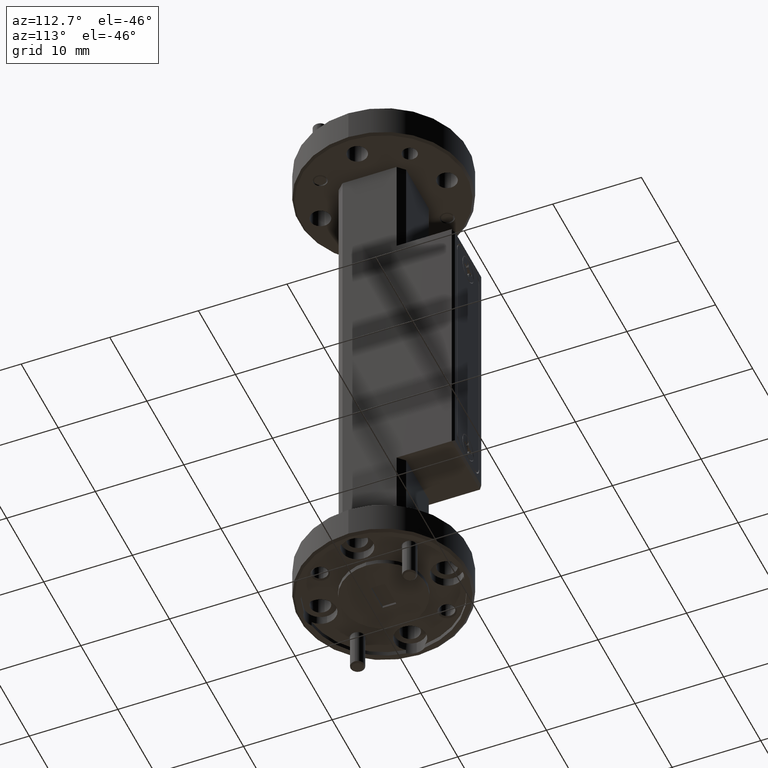
[diagram: clean part render]
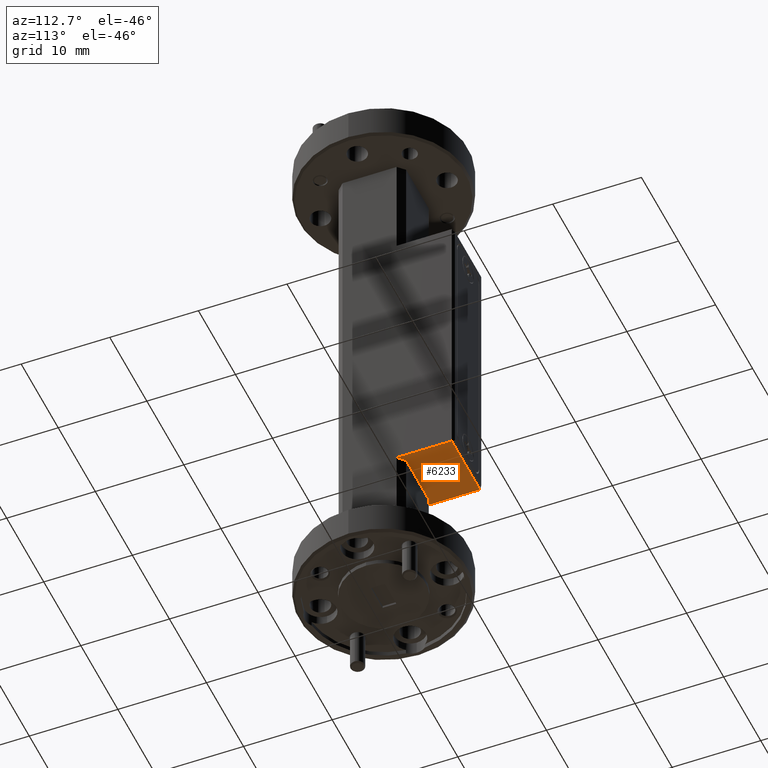
[diagram: same view with one face highlighted and labeled with its STEP entity id]
A machine part, auxiliary view. The second image highlights one B-rep face of the part: STEP entity #6233.
In plain terms, the highlighted planar face has unit normal (0, 0, -1).
Its self-contained STEP definition (entity closure, byte-faithful):
#66 = EDGE_LOOP ( 'NONE', ( #251, #613, #2700, #3508, #6987, #1954 ) ) ;
#117 = LINE ( 'NONE', #7258, #5092 ) ;
#136 = VECTOR ( 'NONE', #6617, 39.37007874015748143 ) ;
#175 = VECTOR ( 'NONE', #635, 39.37007874015748143 ) ;
#251 = ORIENTED_EDGE ( 'NONE', *, *, #623, .F. ) ;
#325 = EDGE_CURVE ( 'NONE', #1874, #7247, #1826, .T. ) ;
#579 = LINE ( 'NONE', #5216, #6936 ) ;
#613 = ORIENTED_EDGE ( 'NONE', *, *, #325, .T. ) ;
#623 = EDGE_CURVE ( 'NONE', #1874, #6634, #4637, .T. ) ;
#635 = DIRECTION ( 'NONE',  ( 7.588466649067396596E-17, 1.000000000000000000, -0.000000000000000000 ) ) ;
#1331 = LINE ( 'NONE', #4224, #175 ) ;
#1701 = CARTESIAN_POINT ( 'NONE',  ( -0.1500000000000001055, 0.3749999999999999445, -0.6250000000000000000 ) ) ;
#1826 = LINE ( 'NONE', #3097, #136 ) ;
#1874 = VERTEX_POINT ( 'NONE', #2557 ) ;
#1954 = ORIENTED_EDGE ( 'NONE', *, *, #6851, .T. ) ;
#2311 = CARTESIAN_POINT ( 'NONE',  ( -0.1500000000000000777, 0.1199999999999997041, -0.6250000000000000000 ) ) ;
#2316 = EDGE_CURVE ( 'NONE', #4044, #5179, #6408, .T. ) ;
#2325 = DIRECTION ( 'NONE',  ( -1.000000000000000000, 0.000000000000000000, 0.000000000000000000 ) ) ;
#2515 = DIRECTION ( 'NONE',  ( -0.7071067811865507924, -0.7071067811865443531, -0.000000000000000000 ) ) ;
#2557 = CARTESIAN_POINT ( 'NONE',  ( -0.1500000000000001055, 0.3649999999999997691, -0.6250000000000000000 ) ) ;
#2700 = ORIENTED_EDGE ( 'NONE', *, *, #5421, .F. ) ;
#3068 = CARTESIAN_POINT ( 'NONE',  ( 0.1500000000000000777, 0.1199999999999997041, -0.6250000000000000000 ) ) ;
#3097 = CARTESIAN_POINT ( 'NONE',  ( 0.1500000000000001055, 0.3649999999999997691, -0.6250000000000000000 ) ) ;
#3508 = ORIENTED_EDGE ( 'NONE', *, *, #6746, .T. ) ;
#3560 = DIRECTION ( 'NONE',  ( 0.000000000000000000, 0.000000000000000000, -1.000000000000000000 ) ) ;
#3669 = VECTOR ( 'NONE', #6409, 39.37007874015748143 ) ;
#3816 = CARTESIAN_POINT ( 'NONE',  ( 0.1199999999999993849, 0.1499999999999999389, -0.6250000000000000000 ) ) ;
#4044 = VERTEX_POINT ( 'NONE', #6599 ) ;
#4224 = CARTESIAN_POINT ( 'NONE',  ( 0.1500000000000001055, 0.3749999999999999445, -0.6250000000000000000 ) ) ;
#4272 = VERTEX_POINT ( 'NONE', #3068 ) ;
#4466 = AXIS2_PLACEMENT_3D ( 'NONE', #5617, #3560, #2325 ) ;
#4637 = LINE ( 'NONE', #1701, #3669 ) ;
#5092 = VECTOR ( 'NONE', #2515, 39.37007874015748143 ) ;
#5179 = VERTEX_POINT ( 'NONE', #3816 ) ;
#5182 = FACE_OUTER_BOUND ( 'NONE', #66, .T. ) ;
#5216 = CARTESIAN_POINT ( 'NONE',  ( 0.1199999999999993849, 0.1499999999999999389, -0.6250000000000000000 ) ) ;
#5257 = CARTESIAN_POINT ( 'NONE',  ( 0.1500000000000000777, 0.1499999999999999389, -0.6250000000000000000 ) ) ;
#5421 = EDGE_CURVE ( 'NONE', #4272, #7247, #1331, .T. ) ;
#5617 = CARTESIAN_POINT ( 'NONE',  ( 0.000000000000000000, 0.000000000000000000, -0.6250000000000000000 ) ) ;
#6122 = CARTESIAN_POINT ( 'NONE',  ( 0.1500000000000001055, 0.3649999999999997691, -0.6250000000000000000 ) ) ;
#6233 = ADVANCED_FACE ( 'NONE', ( #5182 ), #7533, .T. ) ;
#6241 = VECTOR ( 'NONE', #7609, 39.37007874015748143 ) ;
#6408 = LINE ( 'NONE', #5257, #6241 ) ;
#6409 = DIRECTION ( 'NONE',  ( 7.588466649067396596E-17, -1.000000000000000000, 0.000000000000000000 ) ) ;
#6525 = DIRECTION ( 'NONE',  ( -0.7071067811865507924, 0.7071067811865443531, -0.000000000000000000 ) ) ;
#6599 = CARTESIAN_POINT ( 'NONE',  ( -0.1199999999999995931, 0.1499999999999999389, -0.6250000000000000000 ) ) ;
#6617 = DIRECTION ( 'NONE',  ( 1.000000000000000000, 0.000000000000000000, 0.000000000000000000 ) ) ;
#6634 = VERTEX_POINT ( 'NONE', #2311 ) ;
#6746 = EDGE_CURVE ( 'NONE', #4272, #5179, #579, .T. ) ;
#6851 = EDGE_CURVE ( 'NONE', #4044, #6634, #117, .T. ) ;
#6936 = VECTOR ( 'NONE', #6525, 39.37007874015748143 ) ;
#6987 = ORIENTED_EDGE ( 'NONE', *, *, #2316, .F. ) ;
#7247 = VERTEX_POINT ( 'NONE', #6122 ) ;
#7258 = CARTESIAN_POINT ( 'NONE',  ( -0.1500000000000000777, 0.1199999999999997041, -0.6250000000000000000 ) ) ;
#7533 = PLANE ( 'NONE',  #4466 ) ;
#7609 = DIRECTION ( 'NONE',  ( 1.000000000000000000, -0.000000000000000000, -0.000000000000000000 ) ) ;